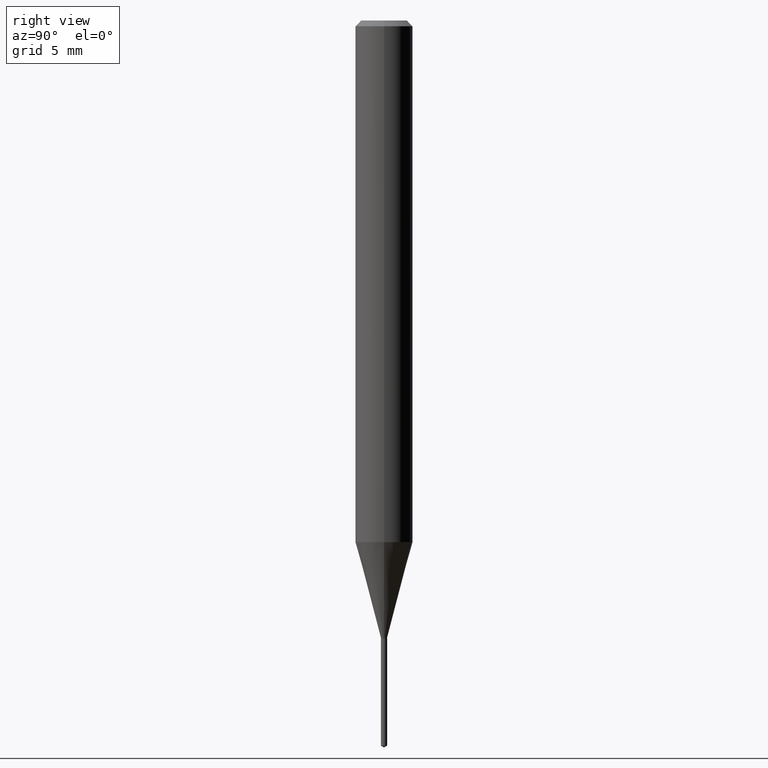
[diagram: clean part render]
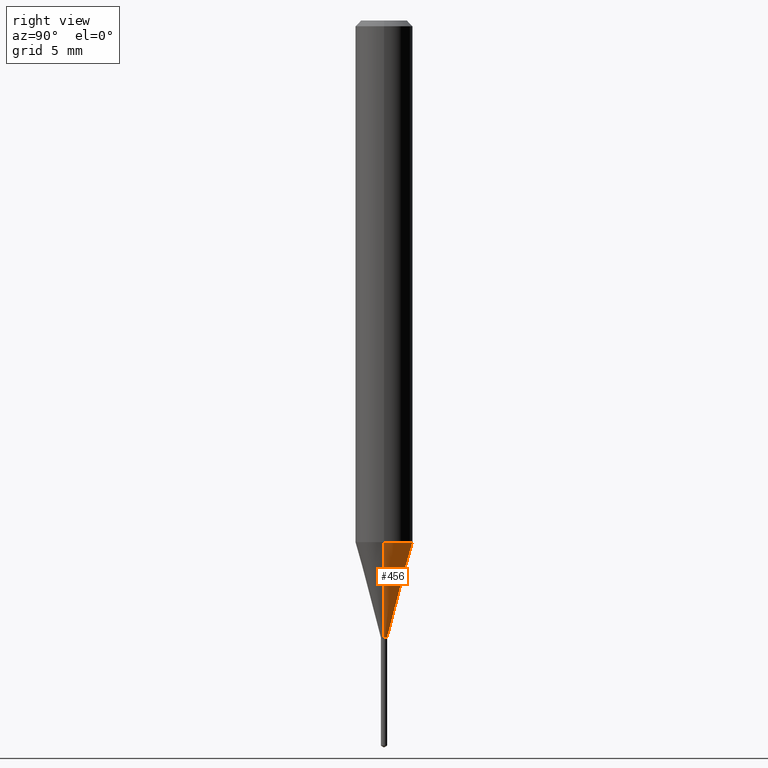
[diagram: same view with one face highlighted and labeled with its STEP entity id]
A machine part, right view. The second image highlights one B-rep face of the part: STEP entity #456.
In plain terms, the highlighted conical surface has half-angle 15 deg.
Its self-contained STEP definition (entity closure, byte-faithful):
#7 = CARTESIAN_POINT ( 'NONE',  ( 0.05905000000000014404, -4.160731030871339348E-15, -1.073580730062255295 ) ) ;
#21 = VECTOR ( 'NONE', #444, 39.37007874015747433 ) ;
#24 = EDGE_CURVE ( 'NONE', #307, #88, #36, .T. ) ;
#36 = LINE ( 'NONE', #183, #328 ) ;
#46 = CONICAL_SURFACE ( 'NONE', #137, 0.006499999999999998834, 0.2617993877991500740 ) ;
#59 = DIRECTION ( 'NONE',  ( -2.445468806185136597E-29, 3.491481338843145583E-15, 1.000000000000000000 ) ) ;
#79 = CIRCLE ( 'NONE', #201, 0.006499999999999998834 ) ;
#82 = DIRECTION ( 'NONE',  ( 1.000000000000000000, -6.982962677686258822E-15, 0.000000000000000000 ) ) ;
#86 = CIRCLE ( 'NONE', #433, 0.05905000000000013016 ) ;
#88 = VERTEX_POINT ( 'NONE', #412 ) ;
#100 = CARTESIAN_POINT ( 'NONE',  ( 3.105011743213267483E-29, -4.433133855929141290E-15, -1.269699999999999829 ) ) ;
#111 = EDGE_CURVE ( 'NONE', #324, #230, #337, .T. ) ;
#137 = AXIS2_PLACEMENT_3D ( 'NONE', #100, #291, #252 ) ;
#169 = FACE_OUTER_BOUND ( 'NONE', #398, .T. ) ;
#183 = CARTESIAN_POINT ( 'NONE',  ( -0.006499999999999998834, -4.386948578104734342E-15, -1.269699999999999829 ) ) ;
#185 = EDGE_CURVE ( 'NONE', #324, #307, #79, .T. ) ;
#188 = ORIENTED_EDGE ( 'NONE', *, *, #185, .T. ) ;
#201 = AXIS2_PLACEMENT_3D ( 'NONE', #277, #421, #82 ) ;
#230 = VERTEX_POINT ( 'NONE', #7 ) ;
#252 = DIRECTION ( 'NONE',  ( 1.000000000000000000, -6.982962677686258822E-15, 0.000000000000000000 ) ) ;
#267 = ORIENTED_EDGE ( 'NONE', *, *, #111, .F. ) ;
#277 = CARTESIAN_POINT ( 'NONE',  ( 3.105011743213267483E-29, -4.433133855929141290E-15, -1.269699999999999829 ) ) ;
#290 = DIRECTION ( 'NONE',  ( 1.000000000000000000, -6.982962677686265133E-15, 0.000000000000000000 ) ) ;
#291 = DIRECTION ( 'NONE',  ( -2.445468806185136597E-29, 3.491481338843145583E-15, 1.000000000000000000 ) ) ;
#307 = VERTEX_POINT ( 'NONE', #319 ) ;
#319 = CARTESIAN_POINT ( 'NONE',  ( -0.006499999999999998834, -4.389567189108866992E-15, -1.269699999999999829 ) ) ;
#322 = ORIENTED_EDGE ( 'NONE', *, *, #367, .F. ) ;
#324 = VERTEX_POINT ( 'NONE', #430 ) ;
#328 = VECTOR ( 'NONE', #340, 39.37007874015747433 ) ;
#337 = LINE ( 'NONE', #443, #21 ) ;
#340 = DIRECTION ( 'NONE',  ( -0.2588190451025213501, 5.211531920934551042E-15, 0.9659258262890682012 ) ) ;
#367 = EDGE_CURVE ( 'NONE', #230, #88, #86, .T. ) ;
#398 = EDGE_LOOP ( 'NONE', ( #188, #452, #322, #267 ) ) ;
#412 = CARTESIAN_POINT ( 'NONE',  ( -0.05905000000000014404, -3.328811599287623751E-15, -1.073580730062255295 ) ) ;
#421 = DIRECTION ( 'NONE',  ( -2.445468806185136597E-29, 3.491481338843145583E-15, 1.000000000000000000 ) ) ;
#430 = CARTESIAN_POINT ( 'NONE',  ( 0.006499999999999998834, -4.478523113334101960E-15, -1.269699999999999829 ) ) ;
#433 = AXIS2_PLACEMENT_3D ( 'NONE', #435, #59, #290 ) ;
#435 = CARTESIAN_POINT ( 'NONE',  ( 2.625408186288710950E-29, -3.748387084753965216E-15, -1.073580730062255295 ) ) ;
#443 = CARTESIAN_POINT ( 'NONE',  ( 0.006499999999999998834, -4.478523113334101960E-15, -1.269699999999999829 ) ) ;
#444 = DIRECTION ( 'NONE',  ( 0.2588190451025213501, 1.565188264969621968E-15, 0.9659258262890682012 ) ) ;
#452 = ORIENTED_EDGE ( 'NONE', *, *, #24, .T. ) ;
#456 = ADVANCED_FACE ( 'NONE', ( #169 ), #46, .T. ) ;